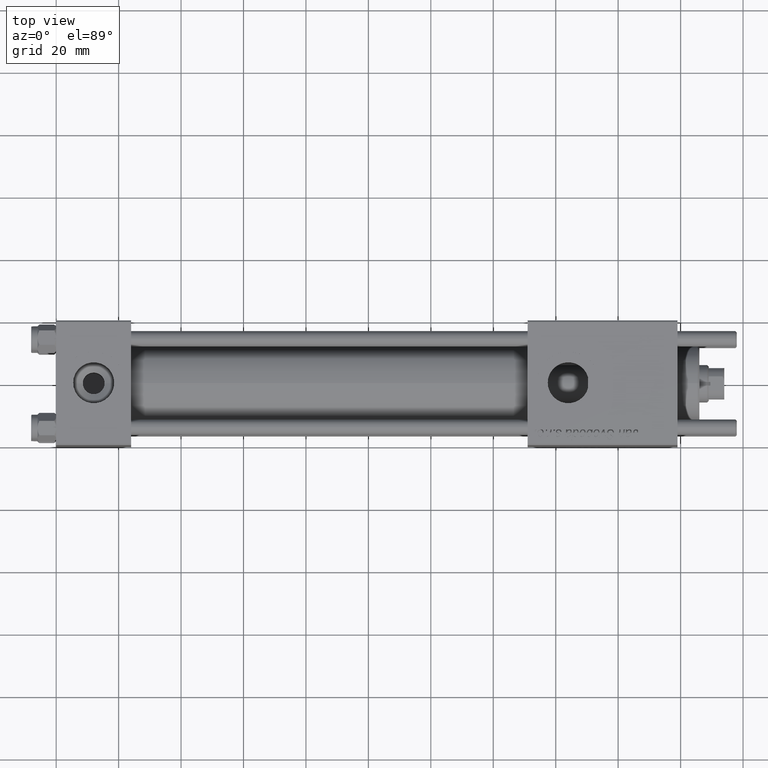
[diagram: clean part render]
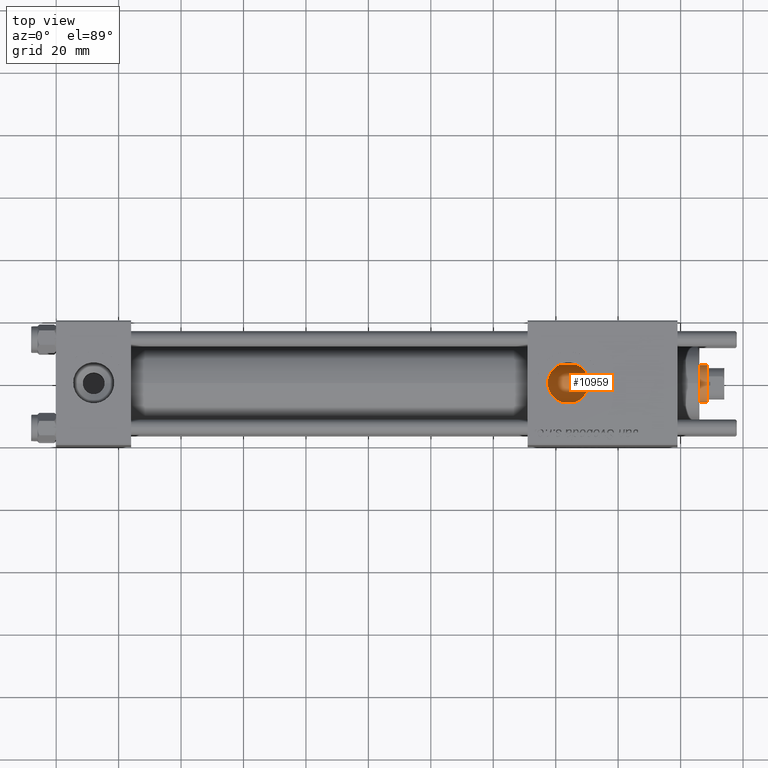
[diagram: same view with one face highlighted and labeled with its STEP entity id]
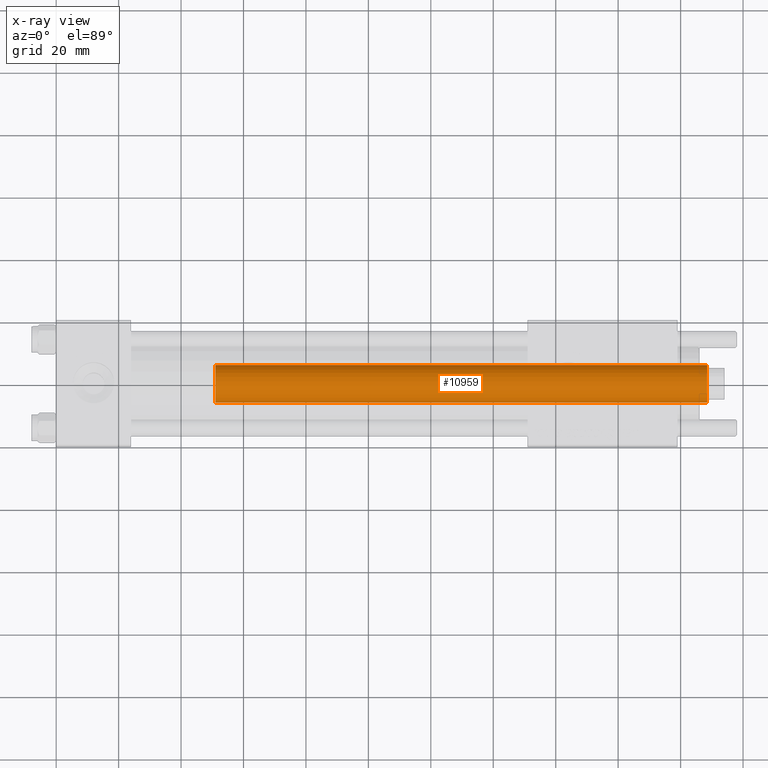
[diagram: x-ray of the same camera — body ghosted, the highlighted face saturated]
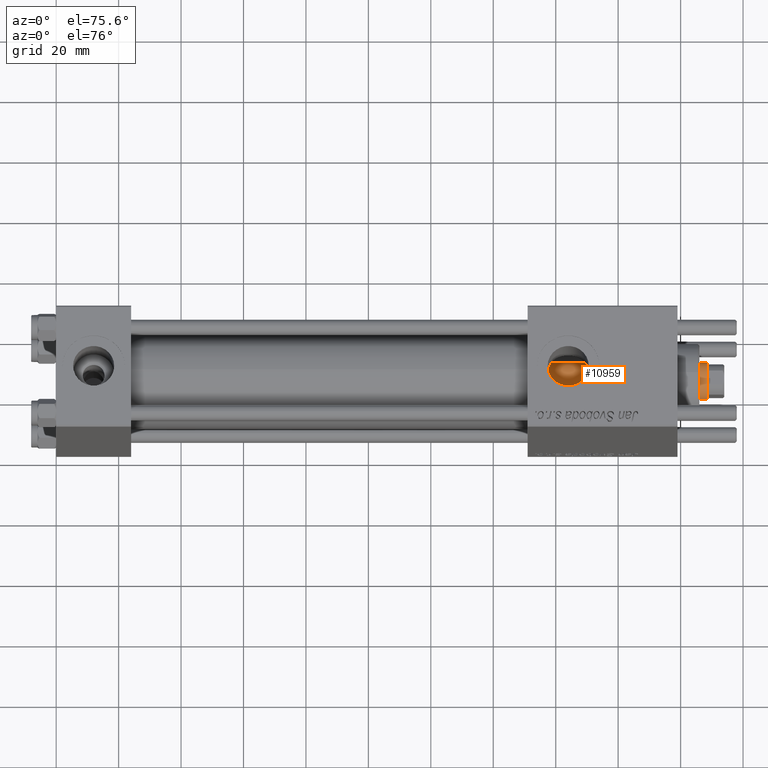
[diagram: same view with one face highlighted and labeled with its STEP entity id]
A machine part, top view. The second image highlights one B-rep face of the part: STEP entity #10959.
The next image is the same camera in x-ray: the body ghosted, the highlighted face saturated — about 0% of this face is hidden behind the body in this view.
A second angle (auxiliary view) of the same face is appended — the face is thin or edge-on in the first view.
In plain terms, the highlighted cylindrical surface (edge-blend (fillet) strip) has radius 6 mm, axis along (-1, 0, 0).
Its self-contained STEP definition (entity closure, byte-faithful):
#614 = DIRECTION ( 'NONE',  ( 1.000000000000000000, 0.000000000000000000, 0.000000000000000000 ) ) ;
#1278 = FACE_OUTER_BOUND ( 'NONE', #50733, .T. ) ;
#1560 = CYLINDRICAL_SURFACE ( 'NONE', #5450, 6.000000000000000888 ) ;
#2085 = DIRECTION ( 'NONE',  ( 0.000000000000000000, 0.000000000000000000, -1.000000000000000000 ) ) ;
#2302 = EDGE_CURVE ( 'NONE', #50235, #29277, #46701, .T. ) ;
#3974 = DIRECTION ( 'NONE',  ( -0.000000000000000000, -0.000000000000000000, -1.000000000000000000 ) ) ;
#4023 = ORIENTED_EDGE ( 'NONE', *, *, #43071, .F. ) ;
#4063 = CARTESIAN_POINT ( 'NONE',  ( -6.000000000000000888, 0.000000000000000000, 184.4999999999999716 ) ) ;
#5088 = DIRECTION ( 'NONE',  ( -0.000000000000000000, -0.000000000000000000, -1.000000000000000000 ) ) ;
#5450 = AXIS2_PLACEMENT_3D ( 'NONE', #27263, #5088, #24009 ) ;
#6506 = CARTESIAN_POINT ( 'NONE',  ( 0.000000000000000000, 0.000000000000000000, 184.4999999999999716 ) ) ;
#7199 = AXIS2_PLACEMENT_3D ( 'NONE', #6506, #2085, #38715 ) ;
#9595 = CARTESIAN_POINT ( 'NONE',  ( 6.000000000000000888, 7.347880794884120722E-16, 185.0000000000000000 ) ) ;
#10405 = CARTESIAN_POINT ( 'NONE',  ( 6.000000000000000888, 7.347880794884120722E-16, 184.4999999999999716 ) ) ;
#10703 = VERTEX_POINT ( 'NONE', #4063 ) ;
#10959 = ADVANCED_FACE ( 'NONE', ( #1278 ), #1560, .T. ) ;
#12002 = VECTOR ( 'NONE', #3974, 1000.000000000000000 ) ;
#15716 = CIRCLE ( 'NONE', #7199, 6.000000000000000888 ) ;
#22859 = ORIENTED_EDGE ( 'NONE', *, *, #35036, .T. ) ;
#23057 = DIRECTION ( 'NONE',  ( 0.000000000000000000, 0.000000000000000000, 1.000000000000000000 ) ) ;
#24009 = DIRECTION ( 'NONE',  ( -1.000000000000000000, 0.000000000000000000, 0.000000000000000000 ) ) ;
#27263 = CARTESIAN_POINT ( 'NONE',  ( 0.000000000000000000, 0.000000000000000000, 185.0000000000000000 ) ) ;
#27980 = ORIENTED_EDGE ( 'NONE', *, *, #2302, .T. ) ;
#28067 = CARTESIAN_POINT ( 'NONE',  ( 0.000000000000000000, 0.000000000000000000, 27.00000000000000000 ) ) ;
#28737 = AXIS2_PLACEMENT_3D ( 'NONE', #28067, #23057, #614 ) ;
#29277 = VERTEX_POINT ( 'NONE', #37652 ) ;
#31236 = VERTEX_POINT ( 'NONE', #10405 ) ;
#32545 = LINE ( 'NONE', #41446, #46940 ) ;
#35036 = EDGE_CURVE ( 'NONE', #31236, #10703, #15716, .T. ) ;
#36115 = DIRECTION ( 'NONE',  ( -0.000000000000000000, -0.000000000000000000, -1.000000000000000000 ) ) ;
#36588 = EDGE_CURVE ( 'NONE', #10703, #50235, #32545, .T. ) ;
#37652 = CARTESIAN_POINT ( 'NONE',  ( 6.000000000000000888, 7.347880794884120722E-16, 27.00000000000000000 ) ) ;
#38715 = DIRECTION ( 'NONE',  ( 1.000000000000000000, 0.000000000000000000, 0.000000000000000000 ) ) ;
#41446 = CARTESIAN_POINT ( 'NONE',  ( -6.000000000000000888, 0.000000000000000000, 185.0000000000000000 ) ) ;
#43071 = EDGE_CURVE ( 'NONE', #31236, #29277, #44481, .T. ) ;
#44481 = LINE ( 'NONE', #9595, #12002 ) ;
#46701 = CIRCLE ( 'NONE', #28737, 6.000000000000000888 ) ;
#46940 = VECTOR ( 'NONE', #36115, 1000.000000000000000 ) ;
#50235 = VERTEX_POINT ( 'NONE', #54348 ) ;
#50733 = EDGE_LOOP ( 'NONE', ( #4023, #22859, #51780, #27980 ) ) ;
#51780 = ORIENTED_EDGE ( 'NONE', *, *, #36588, .T. ) ;
#54348 = CARTESIAN_POINT ( 'NONE',  ( -6.000000000000000888, 0.000000000000000000, 27.00000000000000000 ) ) ;